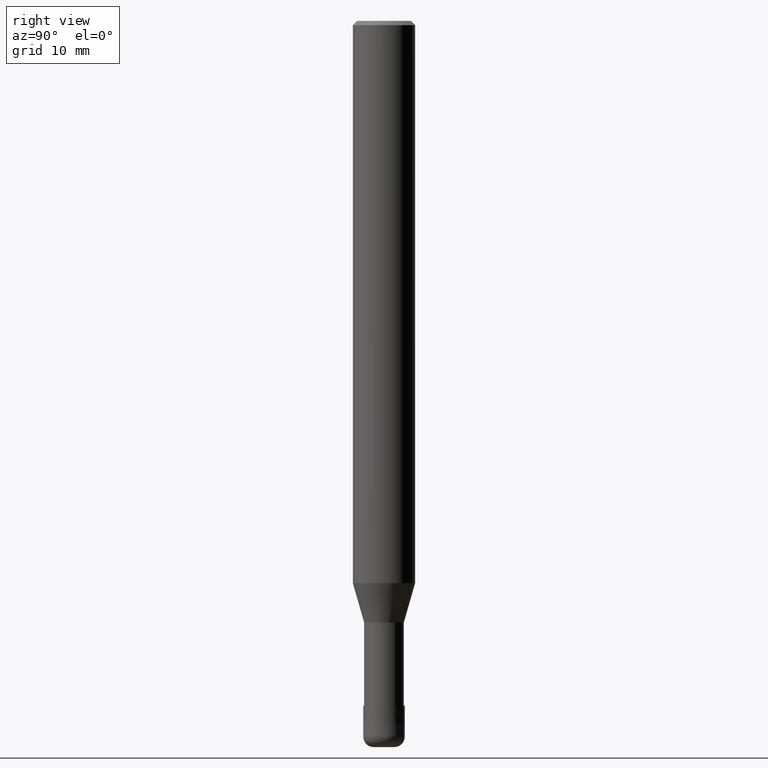
[diagram: clean part render]
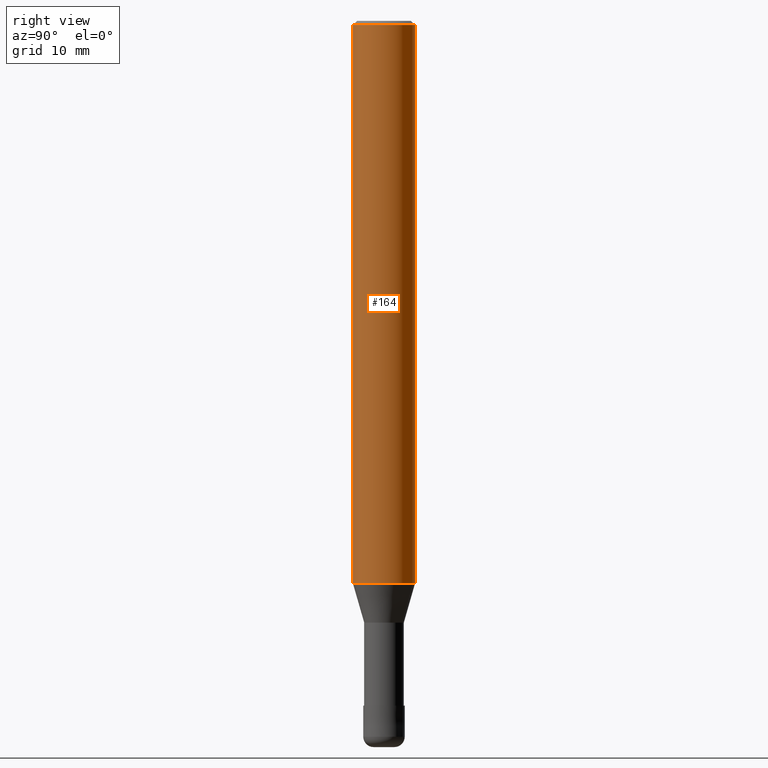
[diagram: same view with one face highlighted and labeled with its STEP entity id]
A machine part, right view. The second image highlights one B-rep face of the part: STEP entity #164.
In plain terms, the highlighted cylindrical surface (edge-blend (fillet) strip) has radius 3 mm, axis along (-0, -0, 1).
Its self-contained STEP definition (entity closure, byte-faithful):
#100=EDGE_CURVE('',#172,#140,#253,.T.);
#102=EDGE_CURVE('',#140,#152,#255,.T.);
#140=VERTEX_POINT('',#299);
#152=VERTEX_POINT('',#312);
#160=EDGE_CURVE('',#230,#152,#320,.T.);
#164=ADVANCED_FACE('',(#324),#325,.T.);
#172=VERTEX_POINT('',#333);
#190=EDGE_CURVE('',#230,#172,#355,.T.);
#230=VERTEX_POINT('',#401);
#253=CIRCLE('',#417,3.0);
#255=LINE('',#420,#421);
#299=CARTESIAN_POINT('',(3.67381906146713E-016,-3.0,-54.199));
#312=CARTESIAN_POINT('',(3.67381906146713E-016,-3.0,-0.399999999999999));
#320=CIRCLE('',#502,3.0);
#324=FACE_OUTER_BOUND('',#507,.T.);
#325=CYLINDRICAL_SURFACE('',#508,3.0);
#333=CARTESIAN_POINT('',(0.0,3.0,-54.199));
#355=LINE('',#544,#545);
#401=CARTESIAN_POINT('',(0.0,3.0,-0.399999999999999));
#417=AXIS2_PLACEMENT_3D('',#606,#607,#608);
#420=CARTESIAN_POINT('',(3.67381906146713E-016,-3.0,-27.2995));
#421=VECTOR('',#609,1.0);
#502=AXIS2_PLACEMENT_3D('',#691,#692,#693);
#507=EDGE_LOOP('',(#698,#699,#700,#701));
#508=AXIS2_PLACEMENT_3D('',#702,#703,#704);
#544=CARTESIAN_POINT('',(-3.67381906146713E-016,3.0,-27.2995));
#545=VECTOR('',#738,1.0);
#606=CARTESIAN_POINT('',(0.0,0.0,-54.199));
#607=DIRECTION('',(0.0,0.0,-1.0));
#608=DIRECTION('',(0.0,1.0,0.0));
#609=DIRECTION('',(-0.0,-0.0,1.0));
#691=CARTESIAN_POINT('',(0.0,0.0,-0.399999999999999));
#692=DIRECTION('',(0.0,0.0,-1.0));
#693=DIRECTION('',(0.0,1.0,0.0));
#698=ORIENTED_EDGE('',*,*,#190,.F.);
#699=ORIENTED_EDGE('',*,*,#160,.T.);
#700=ORIENTED_EDGE('',*,*,#102,.F.);
#701=ORIENTED_EDGE('',*,*,#100,.F.);
#702=CARTESIAN_POINT('',(0.0,0.0,-27.2995));
#703=DIRECTION('',(-0.0,-0.0,1.0));
#704=DIRECTION('',(0.0,1.0,0.0));
#738=DIRECTION('',(0.0,0.0,-1.0));